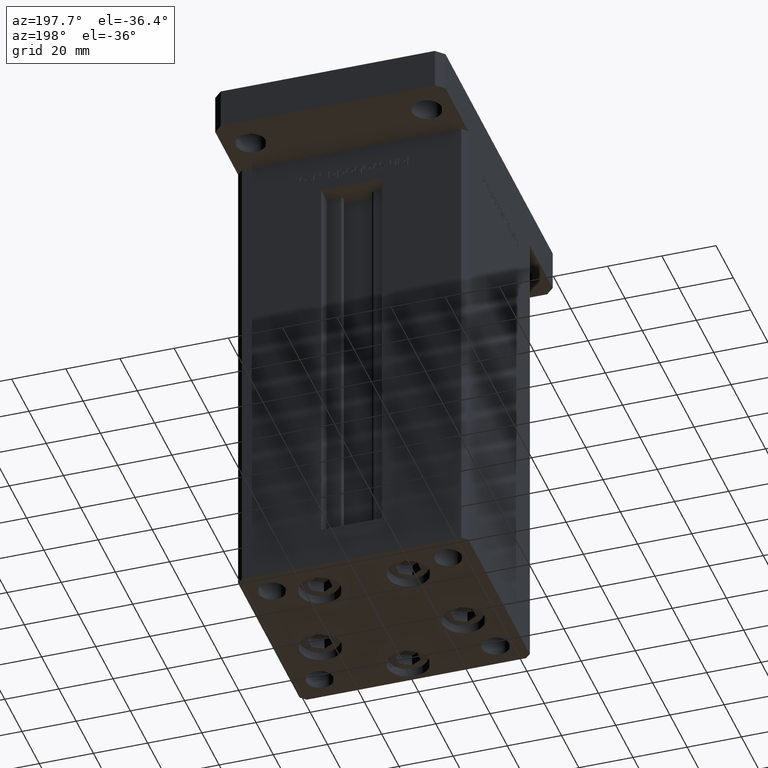
[diagram: clean part render]
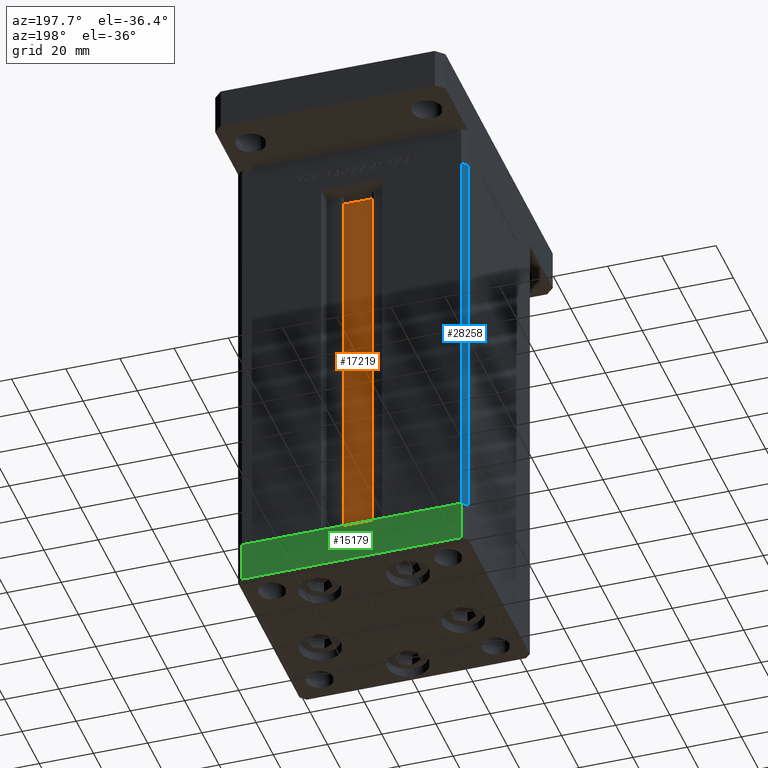
[diagram: same view with three faces highlighted in distinct colors, each labeled with its STEP entity id]
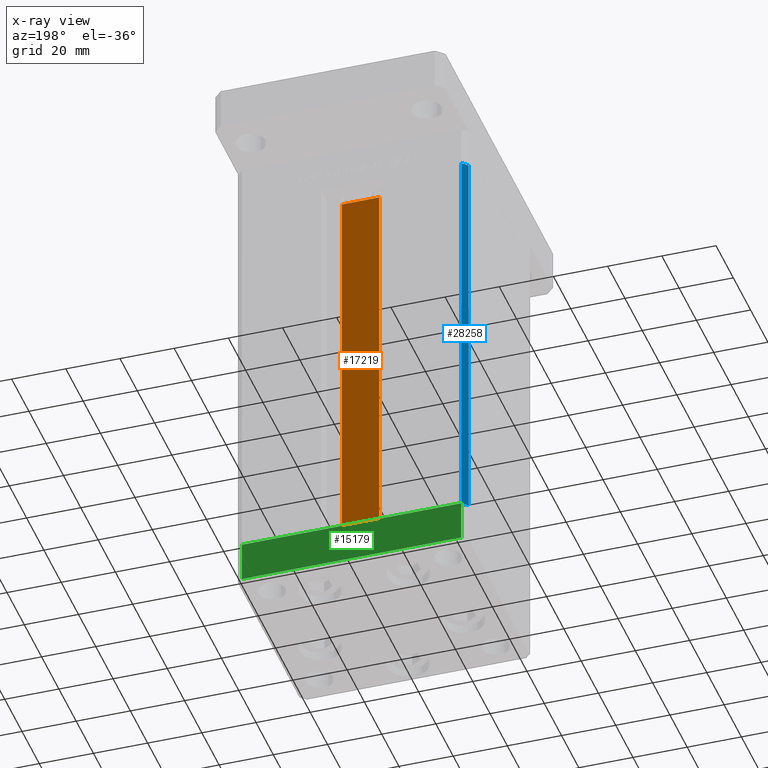
[diagram: x-ray of the same camera — body ghosted, the three highlighted faces saturated]
A machine part, auxiliary view with three faces highlighted in distinct colors.
The next image is the same camera in x-ray (body ghosted, the three faces saturated) — at least one of them is partly hidden behind the body in this view.
Their STEP definitions:

[orange] entity #17219 — the highlighted planar face has unit normal (0, -1, 0).
#551 = CARTESIAN_POINT ( 'NONE',  ( 6.876153656360465938, 26.99999999999986855, 0.000000000000000000 ) ) ;
#1881 = VECTOR ( 'NONE', #44684, 1000.000000000000000 ) ;
#2252 = DIRECTION ( 'NONE',  ( 0.000000000000000000, 0.000000000000000000, -1.000000000000000000 ) ) ;
#3334 = CARTESIAN_POINT ( 'NONE',  ( 6.876153656360465938, 26.99999999999986855, 0.000000000000000000 ) ) ;
#3778 = DIRECTION ( 'NONE',  ( -0.000000000000000000, -0.000000000000000000, 1.000000000000000000 ) ) ;
#4744 = VERTEX_POINT ( 'NONE', #551 ) ;
#7506 = EDGE_CURVE ( 'NONE', #21853, #35007, #28483, .T. ) ;
#7844 = CARTESIAN_POINT ( 'NONE',  ( -6.876153656360465938, 26.99999999999986855, 0.000000000000000000 ) ) ;
#10455 = VECTOR ( 'NONE', #3778, 1000.000000000000000 ) ;
#13190 = CARTESIAN_POINT ( 'NONE',  ( -6.876153656360465938, 26.99999999999986855, 148.5000000000000000 ) ) ;
#14069 = LINE ( 'NONE', #39055, #20581 ) ;
#16455 = CARTESIAN_POINT ( 'NONE',  ( 6.876153656360465938, 26.99999999999986855, 0.000000000000000000 ) ) ;
#16463 = ORIENTED_EDGE ( 'NONE', *, *, #52586, .F. ) ;
#17219 = ADVANCED_FACE ( 'NONE', ( #44595 ), #23986, .F. ) ;
#19072 = VERTEX_POINT ( 'NONE', #41338 ) ;
#20581 = VECTOR ( 'NONE', #34982, 1000.000000000000000 ) ;
#21356 = VECTOR ( 'NONE', #48816, 1000.000000000000000 ) ;
#21853 = VERTEX_POINT ( 'NONE', #41161 ) ;
#23059 = LINE ( 'NONE', #44754, #21356 ) ;
#23986 = PLANE ( 'NONE',  #49763 ) ;
#27763 = DIRECTION ( 'NONE',  ( 0.000000000000000000, -1.000000000000000000, -0.000000000000000000 ) ) ;
#28483 = LINE ( 'NONE', #7844, #10455 ) ;
#28530 = ORIENTED_EDGE ( 'NONE', *, *, #49679, .F. ) ;
#32409 = ORIENTED_EDGE ( 'NONE', *, *, #33343, .F. ) ;
#33343 = EDGE_CURVE ( 'NONE', #21853, #4744, #37383, .T. ) ;
#34982 = DIRECTION ( 'NONE',  ( -1.000000000000000000, 0.000000000000000000, 0.000000000000000000 ) ) ;
#35007 = VERTEX_POINT ( 'NONE', #13190 ) ;
#35052 = EDGE_LOOP ( 'NONE', ( #28530, #32409, #38301, #16463 ) ) ;
#37383 = LINE ( 'NONE', #16455, #1881 ) ;
#38301 = ORIENTED_EDGE ( 'NONE', *, *, #7506, .T. ) ;
#39055 = CARTESIAN_POINT ( 'NONE',  ( 0.000000000000000000, 26.99999999999986855, 148.5000000000000000 ) ) ;
#41161 = CARTESIAN_POINT ( 'NONE',  ( -6.876153656360465938, 26.99999999999986855, 0.000000000000000000 ) ) ;
#41338 = CARTESIAN_POINT ( 'NONE',  ( 6.876153656360465938, 26.99999999999986855, 148.5000000000000000 ) ) ;
#44595 = FACE_OUTER_BOUND ( 'NONE', #35052, .T. ) ;
#44684 = DIRECTION ( 'NONE',  ( 1.000000000000000000, -0.000000000000000000, -0.000000000000000000 ) ) ;
#44754 = CARTESIAN_POINT ( 'NONE',  ( 6.876153656360465938, 26.99999999999986855, 0.000000000000000000 ) ) ;
#48816 = DIRECTION ( 'NONE',  ( -0.000000000000000000, -0.000000000000000000, 1.000000000000000000 ) ) ;
#49679 = EDGE_CURVE ( 'NONE', #4744, #19072, #23059, .T. ) ;
#49763 = AXIS2_PLACEMENT_3D ( 'NONE', #3334, #27763, #2252 ) ;
#52586 = EDGE_CURVE ( 'NONE', #19072, #35007, #14069, .T. ) ;

[blue] entity #28258 — the highlighted planar face has unit normal (0.7071, -0.7071, 0).
#323 = VECTOR ( 'NONE', #1934, 1000.000000000000000 ) ;
#392 = VECTOR ( 'NONE', #39111, 1000.000000000000000 ) ;
#685 = CARTESIAN_POINT ( 'NONE',  ( -40.50000000000000000, 37.50000000000000711, 148.5000000000000000 ) ) ;
#1934 = DIRECTION ( 'NONE',  ( -0.000000000000000000, -0.000000000000000000, -1.000000000000000000 ) ) ;
#2037 = PLANE ( 'NONE',  #39022 ) ;
#2301 = DIRECTION ( 'NONE',  ( 0.7071067811865500152, 0.7071067811865451302, 0.000000000000000000 ) ) ;
#2569 = DIRECTION ( 'NONE',  ( 0.7071067811865451302, -0.7071067811865500152, 0.000000000000000000 ) ) ;
#2606 = VERTEX_POINT ( 'NONE', #50764 ) ;
#2693 = LINE ( 'NONE', #31480, #2758 ) ;
#2758 = VECTOR ( 'NONE', #51544, 1000.000000000000114 ) ;
#4496 = EDGE_LOOP ( 'NONE', ( #6584, #31728, #33952, #26308 ) ) ;
#6584 = ORIENTED_EDGE ( 'NONE', *, *, #7380, .T. ) ;
#6768 = LINE ( 'NONE', #18475, #392 ) ;
#6905 = FACE_OUTER_BOUND ( 'NONE', #4496, .T. ) ;
#7380 = EDGE_CURVE ( 'NONE', #19992, #2606, #2693, .T. ) ;
#10894 = VERTEX_POINT ( 'NONE', #33125 ) ;
#14174 = EDGE_CURVE ( 'NONE', #10894, #31387, #53306, .T. ) ;
#18475 = CARTESIAN_POINT ( 'NONE',  ( -42.50000000000000711, 35.50000000000001421, 148.5000000000000000 ) ) ;
#19992 = VERTEX_POINT ( 'NONE', #32383 ) ;
#26308 = ORIENTED_EDGE ( 'NONE', *, *, #39144, .T. ) ;
#27810 = DIRECTION ( 'NONE',  ( -0.7071067811865500152, -0.7071067811865451302, 0.000000000000000000 ) ) ;
#28258 = ADVANCED_FACE ( 'NONE', ( #6905 ), #2037, .F. ) ;
#28625 = CARTESIAN_POINT ( 'NONE',  ( -40.50000000000000000, 37.50000000000000711, 148.5000000000000000 ) ) ;
#29737 = VECTOR ( 'NONE', #27810, 1000.000000000000114 ) ;
#30979 = CARTESIAN_POINT ( 'NONE',  ( -42.50000000000000711, 35.50000000000001421, 148.5000000000000000 ) ) ;
#31387 = VERTEX_POINT ( 'NONE', #30979 ) ;
#31480 = CARTESIAN_POINT ( 'NONE',  ( -40.50000000000000000, 37.50000000000000711, 0.000000000000000000 ) ) ;
#31728 = ORIENTED_EDGE ( 'NONE', *, *, #44392, .F. ) ;
#32172 = CARTESIAN_POINT ( 'NONE',  ( -40.50000000000000000, 37.50000000000000711, 148.5000000000000000 ) ) ;
#32383 = CARTESIAN_POINT ( 'NONE',  ( -40.50000000000000000, 37.50000000000000711, 0.000000000000000000 ) ) ;
#33125 = CARTESIAN_POINT ( 'NONE',  ( -40.50000000000000000, 37.50000000000000711, 148.5000000000000000 ) ) ;
#33952 = ORIENTED_EDGE ( 'NONE', *, *, #14174, .F. ) ;
#39022 = AXIS2_PLACEMENT_3D ( 'NONE', #32172, #2569, #2301 ) ;
#39111 = DIRECTION ( 'NONE',  ( -0.000000000000000000, -0.000000000000000000, -1.000000000000000000 ) ) ;
#39141 = LINE ( 'NONE', #685, #323 ) ;
#39144 = EDGE_CURVE ( 'NONE', #10894, #19992, #39141, .T. ) ;
#44392 = EDGE_CURVE ( 'NONE', #31387, #2606, #6768, .T. ) ;
#50764 = CARTESIAN_POINT ( 'NONE',  ( -42.50000000000000711, 35.50000000000001421, 0.000000000000000000 ) ) ;
#51544 = DIRECTION ( 'NONE',  ( -0.7071067811865500152, -0.7071067811865451302, 0.000000000000000000 ) ) ;
#53306 = LINE ( 'NONE', #28625, #29737 ) ;

[green] entity #15179 — the highlighted planar face has unit normal (0, 1, 0).
#904 = DIRECTION ( 'NONE',  ( -1.000000000000000000, -3.426614273534436165E-16, 0.000000000000000000 ) ) ;
#1094 = ORIENTED_EDGE ( 'NONE', *, *, #14304, .T. ) ;
#2275 = LINE ( 'NONE', #18584, #41970 ) ;
#3127 = DIRECTION ( 'NONE',  ( -1.000000000000000000, -3.426614273534436165E-16, 0.000000000000000000 ) ) ;
#4618 = VECTOR ( 'NONE', #904, 1000.000000000000000 ) ;
#6378 = VECTOR ( 'NONE', #51311, 1000.000000000000000 ) ;
#6835 = CARTESIAN_POINT ( 'NONE',  ( 40.49999999999991473, 37.50000000000000711, -15.00000000000000000 ) ) ;
#6899 = ORIENTED_EDGE ( 'NONE', *, *, #40320, .F. ) ;
#9599 = VERTEX_POINT ( 'NONE', #13593 ) ;
#9803 = AXIS2_PLACEMENT_3D ( 'NONE', #18876, #23493, #3127 ) ;
#11300 = VECTOR ( 'NONE', #50659, 1000.000000000000000 ) ;
#13593 = CARTESIAN_POINT ( 'NONE',  ( 40.49999999999991473, 37.50000000000000711, 0.000000000000000000 ) ) ;
#14304 = EDGE_CURVE ( 'NONE', #37441, #20755, #45969, .T. ) ;
#15179 = ADVANCED_FACE ( 'NONE', ( #35438 ), #30824, .T. ) ;
#17326 = EDGE_CURVE ( 'NONE', #37441, #9599, #46980, .T. ) ;
#17564 = LINE ( 'NONE', #49593, #11300 ) ;
#18584 = CARTESIAN_POINT ( 'NONE',  ( 40.49999999999991473, 37.50000000000000711, 0.000000000000000000 ) ) ;
#18876 = CARTESIAN_POINT ( 'NONE',  ( 40.49999999999991473, 37.50000000000000711, -15.00000000000000000 ) ) ;
#19240 = ORIENTED_EDGE ( 'NONE', *, *, #17326, .F. ) ;
#20395 = ORIENTED_EDGE ( 'NONE', *, *, #29356, .T. ) ;
#20755 = VERTEX_POINT ( 'NONE', #41750 ) ;
#21511 = CARTESIAN_POINT ( 'NONE',  ( 40.49999999999991473, 37.50000000000000711, -15.00000000000000000 ) ) ;
#23493 = DIRECTION ( 'NONE',  ( -3.426614273534436165E-16, 1.000000000000000000, 0.000000000000000000 ) ) ;
#27791 = CARTESIAN_POINT ( 'NONE',  ( -40.50000000000000711, 37.49999999999997868, 0.000000000000000000 ) ) ;
#29356 = EDGE_CURVE ( 'NONE', #20755, #40172, #17564, .T. ) ;
#29690 = CARTESIAN_POINT ( 'NONE',  ( 40.49999999999991473, 37.50000000000000711, -15.00000000000000000 ) ) ;
#30824 = PLANE ( 'NONE',  #9803 ) ;
#35438 = FACE_OUTER_BOUND ( 'NONE', #36565, .T. ) ;
#36565 = EDGE_LOOP ( 'NONE', ( #6899, #19240, #1094, #20395 ) ) ;
#37441 = VERTEX_POINT ( 'NONE', #6835 ) ;
#40172 = VERTEX_POINT ( 'NONE', #27791 ) ;
#40320 = EDGE_CURVE ( 'NONE', #9599, #40172, #2275, .T. ) ;
#41750 = CARTESIAN_POINT ( 'NONE',  ( -40.50000000000000711, 37.49999999999997868, -15.00000000000000000 ) ) ;
#41970 = VECTOR ( 'NONE', #48404, 1000.000000000000000 ) ;
#45969 = LINE ( 'NONE', #29690, #4618 ) ;
#46980 = LINE ( 'NONE', #21511, #6378 ) ;
#48404 = DIRECTION ( 'NONE',  ( -1.000000000000000000, -3.426614273534436165E-16, 0.000000000000000000 ) ) ;
#49593 = CARTESIAN_POINT ( 'NONE',  ( -40.50000000000000711, 37.49999999999997868, -15.00000000000000000 ) ) ;
#50659 = DIRECTION ( 'NONE',  ( 0.000000000000000000, 0.000000000000000000, 1.000000000000000000 ) ) ;
#51311 = DIRECTION ( 'NONE',  ( 0.000000000000000000, 0.000000000000000000, 1.000000000000000000 ) ) ;